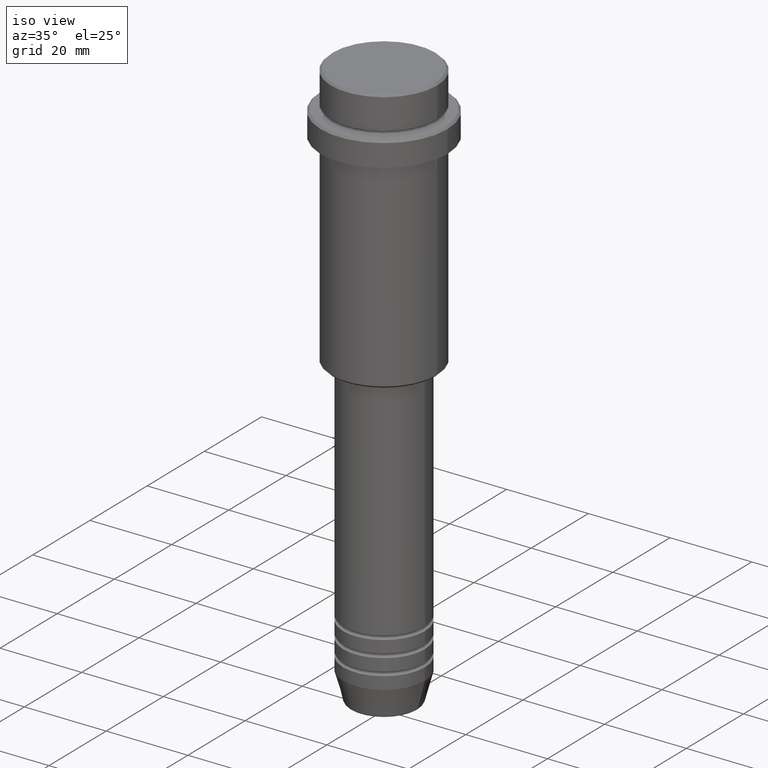
[diagram: clean part render]
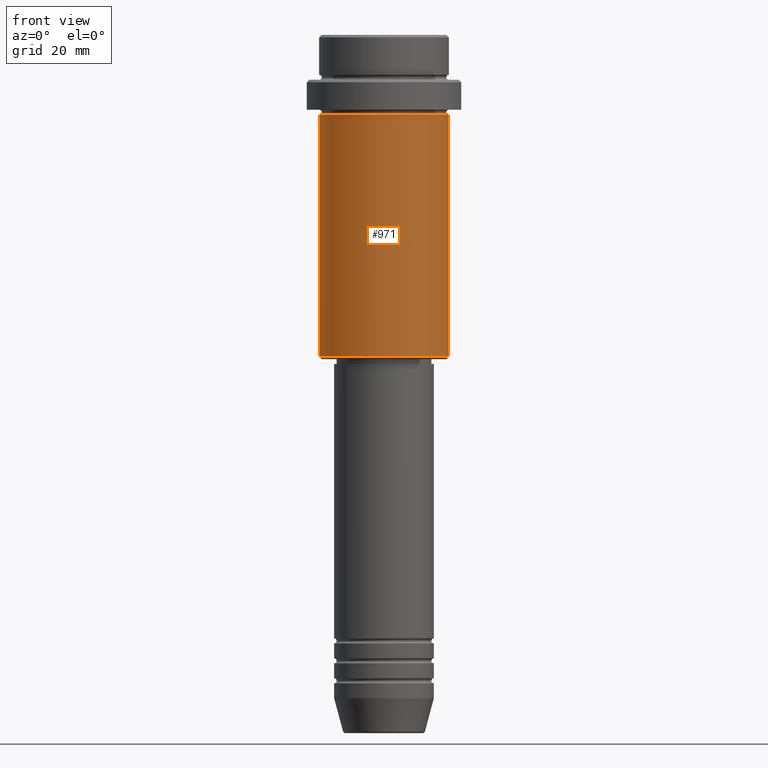
[diagram: tour spotlight — one face highlighted and labeled with its STEP entity id]
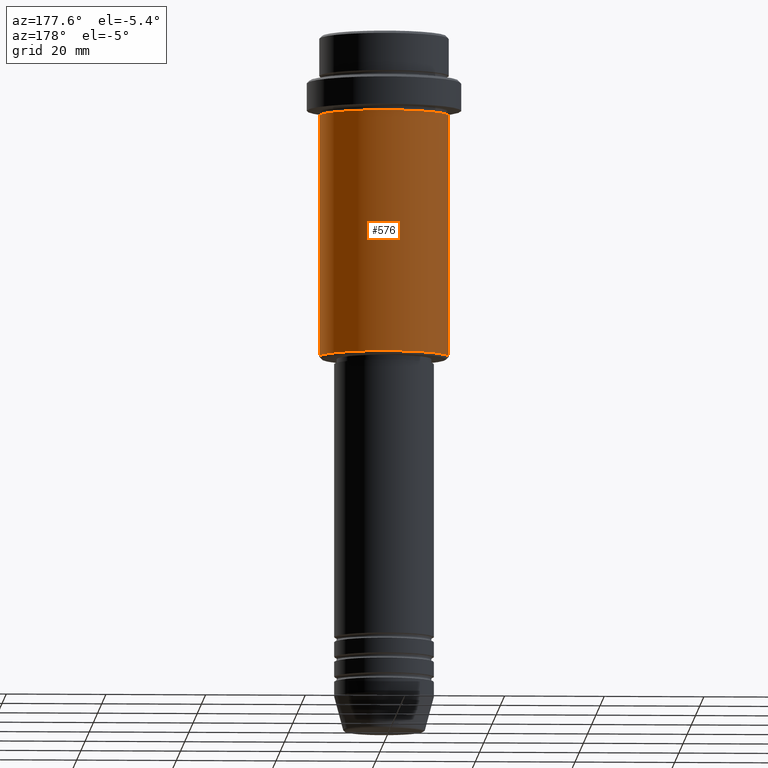
[diagram: tour spotlight — one face highlighted and labeled with its STEP entity id]
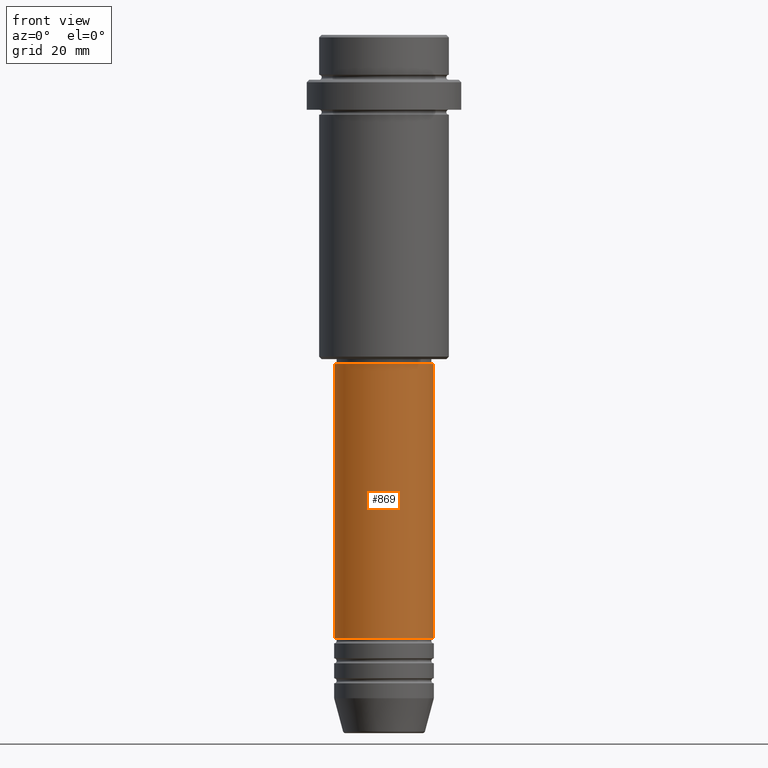
[diagram: tour spotlight — one face highlighted and labeled with its STEP entity id]
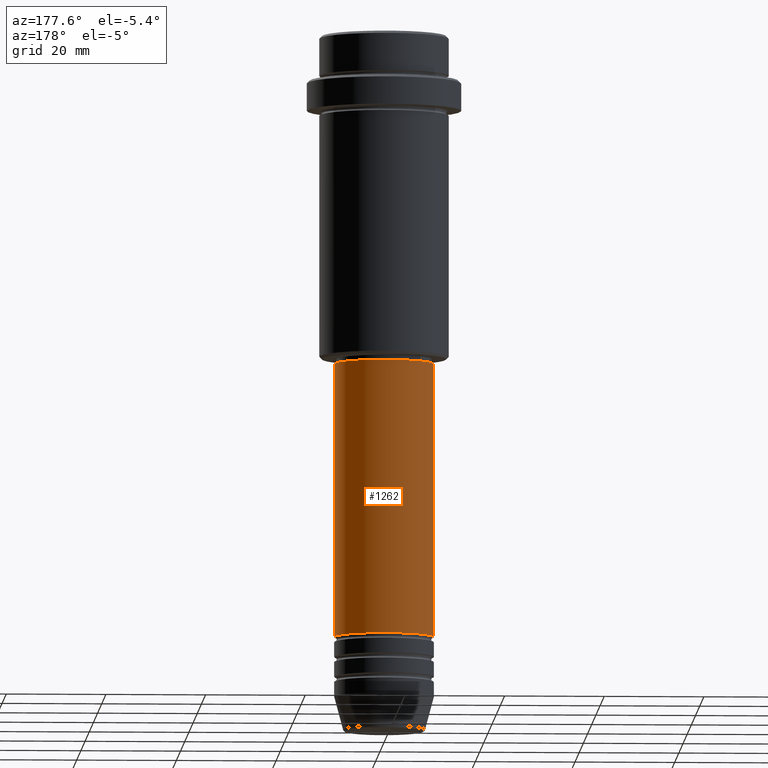
[diagram: tour spotlight — one face highlighted and labeled with its STEP entity id]
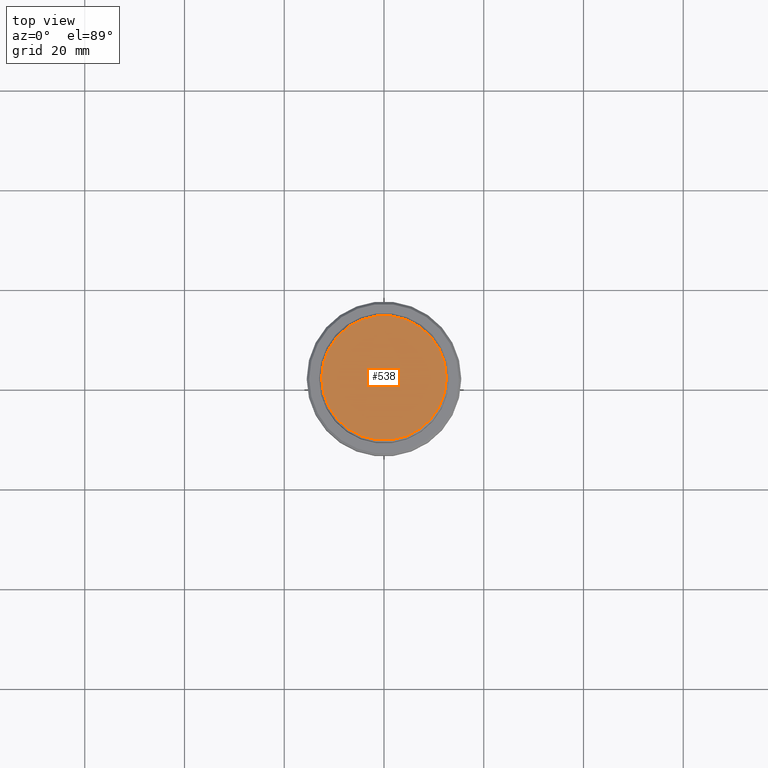
[diagram: tour spotlight — one face highlighted and labeled with its STEP entity id]
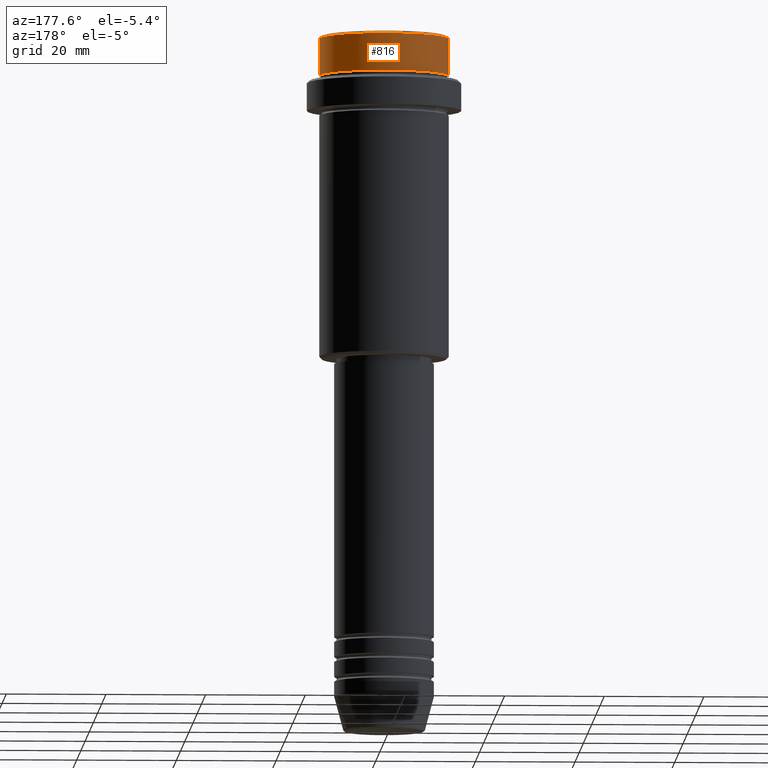
[diagram: tour spotlight — one face highlighted and labeled with its STEP entity id]
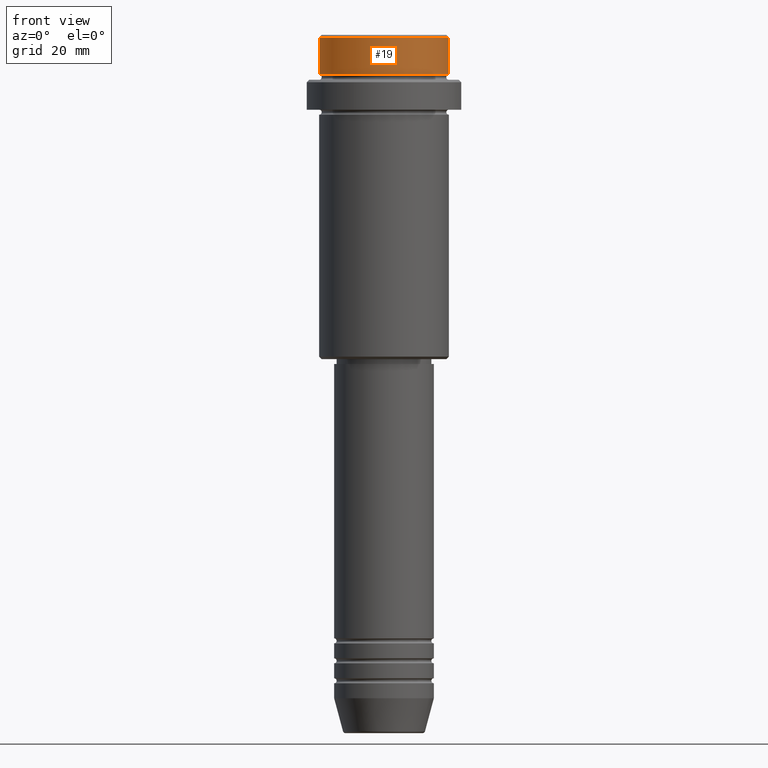
[diagram: tour spotlight — one face highlighted and labeled with its STEP entity id]
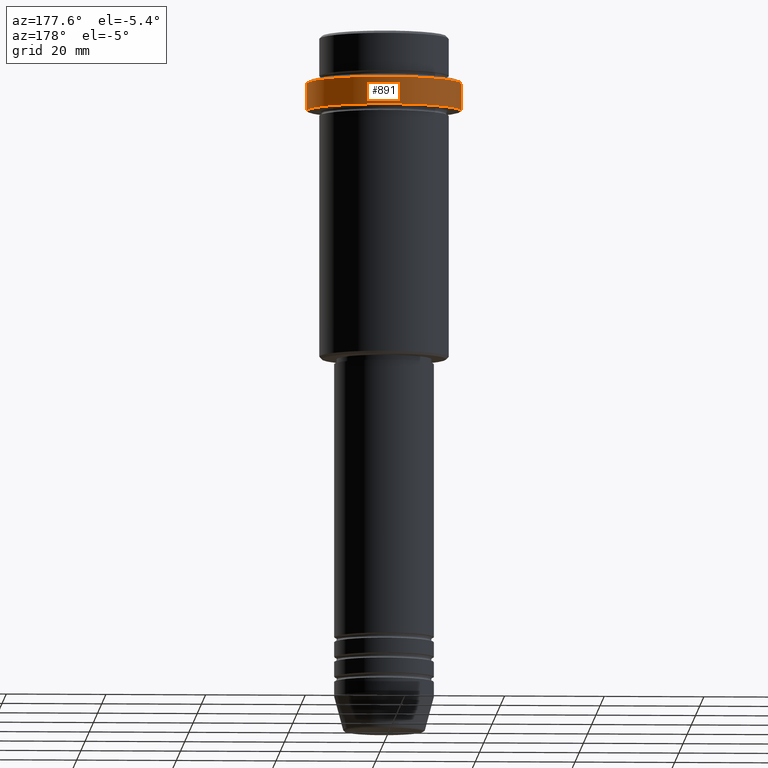
[diagram: tour spotlight — one face highlighted and labeled with its STEP entity id]
A machine part: a face-by-face anatomy tour. The part has 52 B-rep faces; the first image is the clean iso view, then the 8 largest visible faces are spotlighted one at a time (largest first), each with its STEP entity span.

Face 1 — front view, entity #971. In plain terms, the highlighted cylindrical surface (partial cylindrical patch) has radius 13 mm, axis along (-0, -0, 1).
Definition (entity closure, byte-faithful):
#33 = ORIENTED_EDGE ( 'NONE', *, *, #1378, .F. ) ;
#39 = LINE ( 'NONE', #355, #103 ) ;
#45 = CARTESIAN_POINT ( 'NONE',  ( 13.00000000000000000, 0.000000000000000000, 0.000000000000000000 ) ) ;
#58 = DIRECTION ( 'NONE',  ( 1.000000000000000000, 0.000000000000000000, 0.000000000000000000 ) ) ;
#69 = DIRECTION ( 'NONE',  ( -1.000000000000000000, 0.000000000000000000, 0.000000000000000000 ) ) ;
#103 = VECTOR ( 'NONE', #635, 1000.000000000000000 ) ;
#149 = EDGE_CURVE ( 'NONE', #823, #260, #1278, .T. ) ;
#162 = CARTESIAN_POINT ( 'NONE',  ( 0.000000000000000000, 0.000000000000000000, 0.000000000000000000 ) ) ;
#260 = VERTEX_POINT ( 'NONE', #306 ) ;
#272 = CIRCLE ( 'NONE', #314, 13.00000000000000000 ) ;
#306 = CARTESIAN_POINT ( 'NONE',  ( 13.00000000000000000, 0.000000000000000000, -16.00000000000000000 ) ) ;
#314 = AXIS2_PLACEMENT_3D ( 'NONE', #838, #708, #69 ) ;
#355 = CARTESIAN_POINT ( 'NONE',  ( -13.00000000000000000, 1.592040838891559095E-15, 0.000000000000000000 ) ) ;
#385 = ORIENTED_EDGE ( 'NONE', *, *, #934, .T. ) ;
#446 = EDGE_CURVE ( 'NONE', #453, #1354, #39, .T. ) ;
#453 = VERTEX_POINT ( 'NONE', #1266 ) ;
#610 = DIRECTION ( 'NONE',  ( 1.000000000000000000, 0.000000000000000000, 0.000000000000000000 ) ) ;
#614 = ORIENTED_EDGE ( 'NONE', *, *, #149, .T. ) ;
#635 = DIRECTION ( 'NONE',  ( -0.000000000000000000, -0.000000000000000000, 1.000000000000000000 ) ) ;
#704 = CYLINDRICAL_SURFACE ( 'NONE', #879, 13.00000000000000000 ) ;
#708 = DIRECTION ( 'NONE',  ( -0.000000000000000000, -0.000000000000000000, 1.000000000000000000 ) ) ;
#807 = DIRECTION ( 'NONE',  ( -0.000000000000000000, -0.000000000000000000, 1.000000000000000000 ) ) ;
#817 = EDGE_LOOP ( 'NONE', ( #1372, #385, #614, #33 ) ) ;
#823 = VERTEX_POINT ( 'NONE', #1106 ) ;
#825 = CARTESIAN_POINT ( 'NONE',  ( -13.00000000000000000, 1.592040838891559095E-15, -16.00000000000000000 ) ) ;
#838 = CARTESIAN_POINT ( 'NONE',  ( 0.000000000000000000, 0.000000000000000000, -64.50000000000001421 ) ) ;
#879 = AXIS2_PLACEMENT_3D ( 'NONE', #162, #807, #610 ) ;
#899 = VECTOR ( 'NONE', #1165, 1000.000000000000000 ) ;
#931 = FACE_OUTER_BOUND ( 'NONE', #817, .T. ) ;
#934 = EDGE_CURVE ( 'NONE', #453, #823, #272, .T. ) ;
#971 = ADVANCED_FACE ( 'NONE', ( #931 ), #704, .T. ) ;
#1025 = DIRECTION ( 'NONE',  ( -0.000000000000000000, -0.000000000000000000, 1.000000000000000000 ) ) ;
#1106 = CARTESIAN_POINT ( 'NONE',  ( 13.00000000000000000, 0.000000000000000000, -64.50000000000001421 ) ) ;
#1165 = DIRECTION ( 'NONE',  ( -0.000000000000000000, -0.000000000000000000, 1.000000000000000000 ) ) ;
#1263 = CARTESIAN_POINT ( 'NONE',  ( 0.000000000000000000, 0.000000000000000000, -16.00000000000000000 ) ) ;
#1266 = CARTESIAN_POINT ( 'NONE',  ( -13.00000000000000000, 1.592040838891559095E-15, -64.50000000000001421 ) ) ;
#1278 = LINE ( 'NONE', #45, #899 ) ;
#1300 = CIRCLE ( 'NONE', #1408, 13.00000000000000000 ) ;
#1354 = VERTEX_POINT ( 'NONE', #825 ) ;
#1372 = ORIENTED_EDGE ( 'NONE', *, *, #446, .F. ) ;
#1378 = EDGE_CURVE ( 'NONE', #1354, #260, #1300, .T. ) ;
#1408 = AXIS2_PLACEMENT_3D ( 'NONE', #1263, #1025, #58 ) ;

Face 2 — auxiliary view, entity #576. In plain terms, the highlighted cylindrical surface (partial cylindrical patch) has radius 13 mm, axis along (-0, -0, 1).
Definition (entity closure, byte-faithful):
#9 = ORIENTED_EDGE ( 'NONE', *, *, #149, .F. ) ;
#39 = LINE ( 'NONE', #355, #103 ) ;
#45 = CARTESIAN_POINT ( 'NONE',  ( 13.00000000000000000, 0.000000000000000000, 0.000000000000000000 ) ) ;
#103 = VECTOR ( 'NONE', #635, 1000.000000000000000 ) ;
#149 = EDGE_CURVE ( 'NONE', #823, #260, #1278, .T. ) ;
#157 = CARTESIAN_POINT ( 'NONE',  ( 0.000000000000000000, 0.000000000000000000, -64.50000000000001421 ) ) ;
#188 = ORIENTED_EDGE ( 'NONE', *, *, #446, .T. ) ;
#224 = EDGE_LOOP ( 'NONE', ( #1155, #188, #296, #9 ) ) ;
#260 = VERTEX_POINT ( 'NONE', #306 ) ;
#296 = ORIENTED_EDGE ( 'NONE', *, *, #1406, .F. ) ;
#297 = CARTESIAN_POINT ( 'NONE',  ( 0.000000000000000000, 0.000000000000000000, -16.00000000000000000 ) ) ;
#306 = CARTESIAN_POINT ( 'NONE',  ( 13.00000000000000000, 0.000000000000000000, -16.00000000000000000 ) ) ;
#355 = CARTESIAN_POINT ( 'NONE',  ( -13.00000000000000000, 1.592040838891559095E-15, 0.000000000000000000 ) ) ;
#357 = AXIS2_PLACEMENT_3D ( 'NONE', #157, #590, #1023 ) ;
#379 = DIRECTION ( 'NONE',  ( -0.000000000000000000, -0.000000000000000000, 1.000000000000000000 ) ) ;
#446 = EDGE_CURVE ( 'NONE', #453, #1354, #39, .T. ) ;
#453 = VERTEX_POINT ( 'NONE', #1266 ) ;
#487 = FACE_OUTER_BOUND ( 'NONE', #224, .T. ) ;
#576 = ADVANCED_FACE ( 'NONE', ( #487 ), #925, .T. ) ;
#590 = DIRECTION ( 'NONE',  ( -0.000000000000000000, -0.000000000000000000, 1.000000000000000000 ) ) ;
#608 = AXIS2_PLACEMENT_3D ( 'NONE', #297, #919, #819 ) ;
#628 = CIRCLE ( 'NONE', #357, 13.00000000000000000 ) ;
#635 = DIRECTION ( 'NONE',  ( -0.000000000000000000, -0.000000000000000000, 1.000000000000000000 ) ) ;
#819 = DIRECTION ( 'NONE',  ( 1.000000000000000000, 0.000000000000000000, 0.000000000000000000 ) ) ;
#823 = VERTEX_POINT ( 'NONE', #1106 ) ;
#825 = CARTESIAN_POINT ( 'NONE',  ( -13.00000000000000000, 1.592040838891559095E-15, -16.00000000000000000 ) ) ;
#829 = CARTESIAN_POINT ( 'NONE',  ( 0.000000000000000000, 0.000000000000000000, 0.000000000000000000 ) ) ;
#881 = EDGE_CURVE ( 'NONE', #823, #453, #628, .T. ) ;
#899 = VECTOR ( 'NONE', #1165, 1000.000000000000000 ) ;
#902 = AXIS2_PLACEMENT_3D ( 'NONE', #829, #379, #1393 ) ;
#919 = DIRECTION ( 'NONE',  ( -0.000000000000000000, -0.000000000000000000, 1.000000000000000000 ) ) ;
#925 = CYLINDRICAL_SURFACE ( 'NONE', #902, 13.00000000000000000 ) ;
#1023 = DIRECTION ( 'NONE',  ( -1.000000000000000000, 0.000000000000000000, 0.000000000000000000 ) ) ;
#1064 = CIRCLE ( 'NONE', #608, 13.00000000000000000 ) ;
#1106 = CARTESIAN_POINT ( 'NONE',  ( 13.00000000000000000, 0.000000000000000000, -64.50000000000001421 ) ) ;
#1155 = ORIENTED_EDGE ( 'NONE', *, *, #881, .T. ) ;
#1165 = DIRECTION ( 'NONE',  ( -0.000000000000000000, -0.000000000000000000, 1.000000000000000000 ) ) ;
#1266 = CARTESIAN_POINT ( 'NONE',  ( -13.00000000000000000, 1.592040838891559095E-15, -64.50000000000001421 ) ) ;
#1278 = LINE ( 'NONE', #45, #899 ) ;
#1354 = VERTEX_POINT ( 'NONE', #825 ) ;
#1393 = DIRECTION ( 'NONE',  ( 1.000000000000000000, 0.000000000000000000, 0.000000000000000000 ) ) ;
#1406 = EDGE_CURVE ( 'NONE', #260, #1354, #1064, .T. ) ;

Face 3 — front view, entity #869. In plain terms, the highlighted cylindrical surface (partial cylindrical patch) has radius 10 mm, axis along (-0, -0, 1).
Definition (entity closure, byte-faithful):
#2 = DIRECTION ( 'NONE',  ( -0.000000000000000000, -0.000000000000000000, 1.000000000000000000 ) ) ;
#114 = VERTEX_POINT ( 'NONE', #229 ) ;
#178 = CARTESIAN_POINT ( 'NONE',  ( -10.00000000000000178, 1.224646799147353454E-15, 0.000000000000000000 ) ) ;
#196 = AXIS2_PLACEMENT_3D ( 'NONE', #1164, #1060, #495 ) ;
#226 = LINE ( 'NONE', #883, #675 ) ;
#229 = CARTESIAN_POINT ( 'NONE',  ( 10.00000000000000178, 0.000000000000000000, -66.00000000000001421 ) ) ;
#274 = EDGE_CURVE ( 'NONE', #1321, #114, #226, .T. ) ;
#381 = ORIENTED_EDGE ( 'NONE', *, *, #796, .F. ) ;
#431 = ORIENTED_EDGE ( 'NONE', *, *, #274, .T. ) ;
#449 = DIRECTION ( 'NONE',  ( 1.000000000000000000, 0.000000000000000000, 0.000000000000000000 ) ) ;
#495 = DIRECTION ( 'NONE',  ( 1.000000000000000000, 0.000000000000000000, 0.000000000000000000 ) ) ;
#511 = EDGE_CURVE ( 'NONE', #550, #1221, #953, .T. ) ;
#550 = VERTEX_POINT ( 'NONE', #1376 ) ;
#599 = EDGE_CURVE ( 'NONE', #550, #1321, #699, .T. ) ;
#656 = CARTESIAN_POINT ( 'NONE',  ( -10.00000000000000178, 1.224646799147353454E-15, -66.00000000000001421 ) ) ;
#666 = CYLINDRICAL_SURFACE ( 'NONE', #1341, 10.00000000000000178 ) ;
#675 = VECTOR ( 'NONE', #2, 1000.000000000000000 ) ;
#678 = DIRECTION ( 'NONE',  ( -0.000000000000000000, -0.000000000000000000, 1.000000000000000000 ) ) ;
#699 = CIRCLE ( 'NONE', #196, 10.00000000000000000 ) ;
#735 = EDGE_LOOP ( 'NONE', ( #1144, #1387, #431, #381 ) ) ;
#796 = EDGE_CURVE ( 'NONE', #1221, #114, #924, .T. ) ;
#869 = ADVANCED_FACE ( 'NONE', ( #1116 ), #666, .T. ) ;
#883 = CARTESIAN_POINT ( 'NONE',  ( 10.00000000000000178, 0.000000000000000000, 0.000000000000000000 ) ) ;
#909 = CARTESIAN_POINT ( 'NONE',  ( 10.00000000000000000, 0.000000000000000000, -120.9999999999999005 ) ) ;
#924 = CIRCLE ( 'NONE', #1276, 10.00000000000000178 ) ;
#953 = LINE ( 'NONE', #178, #1338 ) ;
#1002 = DIRECTION ( 'NONE',  ( 1.000000000000000000, 0.000000000000000000, 0.000000000000000000 ) ) ;
#1060 = DIRECTION ( 'NONE',  ( -0.000000000000000000, -0.000000000000000000, 1.000000000000000000 ) ) ;
#1111 = CARTESIAN_POINT ( 'NONE',  ( 0.000000000000000000, 0.000000000000000000, 0.000000000000000000 ) ) ;
#1116 = FACE_OUTER_BOUND ( 'NONE', #735, .T. ) ;
#1144 = ORIENTED_EDGE ( 'NONE', *, *, #511, .F. ) ;
#1157 = DIRECTION ( 'NONE',  ( -0.000000000000000000, -0.000000000000000000, 1.000000000000000000 ) ) ;
#1164 = CARTESIAN_POINT ( 'NONE',  ( 0.000000000000000000, 0.000000000000000000, -120.9999999999999005 ) ) ;
#1221 = VERTEX_POINT ( 'NONE', #656 ) ;
#1234 = DIRECTION ( 'NONE',  ( -0.000000000000000000, -0.000000000000000000, 1.000000000000000000 ) ) ;
#1276 = AXIS2_PLACEMENT_3D ( 'NONE', #1315, #1234, #449 ) ;
#1315 = CARTESIAN_POINT ( 'NONE',  ( 0.000000000000000000, 0.000000000000000000, -66.00000000000001421 ) ) ;
#1321 = VERTEX_POINT ( 'NONE', #909 ) ;
#1338 = VECTOR ( 'NONE', #1157, 1000.000000000000000 ) ;
#1341 = AXIS2_PLACEMENT_3D ( 'NONE', #1111, #678, #1002 ) ;
#1376 = CARTESIAN_POINT ( 'NONE',  ( -10.00000000000000000, 1.224646799147353256E-15, -120.9999999999999005 ) ) ;
#1387 = ORIENTED_EDGE ( 'NONE', *, *, #599, .T. ) ;

Face 4 — auxiliary view, entity #1262. In plain terms, the highlighted cylindrical surface (partial cylindrical patch) has radius 10 mm, axis along (-0, -0, 1).
Definition (entity closure, byte-faithful):
#2 = DIRECTION ( 'NONE',  ( -0.000000000000000000, -0.000000000000000000, 1.000000000000000000 ) ) ;
#35 = EDGE_CURVE ( 'NONE', #1321, #550, #192, .T. ) ;
#59 = AXIS2_PLACEMENT_3D ( 'NONE', #624, #404, #169 ) ;
#114 = VERTEX_POINT ( 'NONE', #229 ) ;
#136 = CARTESIAN_POINT ( 'NONE',  ( 0.000000000000000000, 0.000000000000000000, 0.000000000000000000 ) ) ;
#169 = DIRECTION ( 'NONE',  ( 1.000000000000000000, 0.000000000000000000, 0.000000000000000000 ) ) ;
#178 = CARTESIAN_POINT ( 'NONE',  ( -10.00000000000000178, 1.224646799147353454E-15, 0.000000000000000000 ) ) ;
#192 = CIRCLE ( 'NONE', #1316, 10.00000000000000000 ) ;
#226 = LINE ( 'NONE', #883, #675 ) ;
#229 = CARTESIAN_POINT ( 'NONE',  ( 10.00000000000000178, 0.000000000000000000, -66.00000000000001421 ) ) ;
#274 = EDGE_CURVE ( 'NONE', #1321, #114, #226, .T. ) ;
#302 = ORIENTED_EDGE ( 'NONE', *, *, #35, .T. ) ;
#329 = ORIENTED_EDGE ( 'NONE', *, *, #511, .T. ) ;
#366 = CYLINDRICAL_SURFACE ( 'NONE', #681, 10.00000000000000178 ) ;
#404 = DIRECTION ( 'NONE',  ( -0.000000000000000000, -0.000000000000000000, 1.000000000000000000 ) ) ;
#405 = DIRECTION ( 'NONE',  ( -0.000000000000000000, -0.000000000000000000, 1.000000000000000000 ) ) ;
#511 = EDGE_CURVE ( 'NONE', #550, #1221, #953, .T. ) ;
#550 = VERTEX_POINT ( 'NONE', #1376 ) ;
#585 = EDGE_CURVE ( 'NONE', #114, #1221, #808, .T. ) ;
#624 = CARTESIAN_POINT ( 'NONE',  ( 0.000000000000000000, 0.000000000000000000, -66.00000000000001421 ) ) ;
#656 = CARTESIAN_POINT ( 'NONE',  ( -10.00000000000000178, 1.224646799147353454E-15, -66.00000000000001421 ) ) ;
#675 = VECTOR ( 'NONE', #2, 1000.000000000000000 ) ;
#681 = AXIS2_PLACEMENT_3D ( 'NONE', #136, #684, #887 ) ;
#684 = DIRECTION ( 'NONE',  ( -0.000000000000000000, -0.000000000000000000, 1.000000000000000000 ) ) ;
#784 = ORIENTED_EDGE ( 'NONE', *, *, #274, .F. ) ;
#808 = CIRCLE ( 'NONE', #59, 10.00000000000000178 ) ;
#836 = EDGE_LOOP ( 'NONE', ( #302, #329, #1327, #784 ) ) ;
#843 = DIRECTION ( 'NONE',  ( 1.000000000000000000, 0.000000000000000000, 0.000000000000000000 ) ) ;
#883 = CARTESIAN_POINT ( 'NONE',  ( 10.00000000000000178, 0.000000000000000000, 0.000000000000000000 ) ) ;
#887 = DIRECTION ( 'NONE',  ( 1.000000000000000000, 0.000000000000000000, 0.000000000000000000 ) ) ;
#909 = CARTESIAN_POINT ( 'NONE',  ( 10.00000000000000000, 0.000000000000000000, -120.9999999999999005 ) ) ;
#953 = LINE ( 'NONE', #178, #1338 ) ;
#1102 = FACE_OUTER_BOUND ( 'NONE', #836, .T. ) ;
#1157 = DIRECTION ( 'NONE',  ( -0.000000000000000000, -0.000000000000000000, 1.000000000000000000 ) ) ;
#1221 = VERTEX_POINT ( 'NONE', #656 ) ;
#1262 = ADVANCED_FACE ( 'NONE', ( #1102 ), #366, .T. ) ;
#1316 = AXIS2_PLACEMENT_3D ( 'NONE', #1389, #405, #843 ) ;
#1321 = VERTEX_POINT ( 'NONE', #909 ) ;
#1327 = ORIENTED_EDGE ( 'NONE', *, *, #585, .F. ) ;
#1338 = VECTOR ( 'NONE', #1157, 1000.000000000000000 ) ;
#1376 = CARTESIAN_POINT ( 'NONE',  ( -10.00000000000000000, 1.224646799147353256E-15, -120.9999999999999005 ) ) ;
#1389 = CARTESIAN_POINT ( 'NONE',  ( 0.000000000000000000, 0.000000000000000000, -120.9999999999999005 ) ) ;

Face 5 — top view, entity #538. In plain terms, the highlighted planar face has unit normal (0, -0, 1).
Definition (entity closure, byte-faithful):
#159 = EDGE_LOOP ( 'NONE', ( #1101, #239 ) ) ;
#186 = DIRECTION ( 'NONE',  ( 1.000000000000000000, 0.000000000000000000, 0.000000000000000000 ) ) ;
#194 = AXIS2_PLACEMENT_3D ( 'NONE', #749, #1353, #1366 ) ;
#239 = ORIENTED_EDGE ( 'NONE', *, *, #374, .T. ) ;
#246 = CIRCLE ( 'NONE', #194, 12.50000000000001243 ) ;
#290 = CARTESIAN_POINT ( 'NONE',  ( -12.50000000000001243, 0.000000000000000000, 0.000000000000000000 ) ) ;
#374 = EDGE_CURVE ( 'NONE', #482, #1380, #246, .T. ) ;
#387 = PLANE ( 'NONE',  #901 ) ;
#447 = DIRECTION ( 'NONE',  ( 1.000000000000000000, 0.000000000000000000, 0.000000000000000000 ) ) ;
#482 = VERTEX_POINT ( 'NONE', #516 ) ;
#516 = CARTESIAN_POINT ( 'NONE',  ( 12.50000000000001243, 1.561424668912876097E-15, 0.000000000000000000 ) ) ;
#538 = ADVANCED_FACE ( 'NONE', ( #611 ), #387, .T. ) ;
#611 = FACE_OUTER_BOUND ( 'NONE', #159, .T. ) ;
#749 = CARTESIAN_POINT ( 'NONE',  ( 0.000000000000000000, 0.000000000000000000, 0.000000000000000000 ) ) ;
#778 = CARTESIAN_POINT ( 'NONE',  ( 0.000000000000000000, 0.000000000000000000, 0.000000000000000000 ) ) ;
#901 = AXIS2_PLACEMENT_3D ( 'NONE', #1291, #1045, #186 ) ;
#928 = AXIS2_PLACEMENT_3D ( 'NONE', #778, #1208, #447 ) ;
#1016 = CIRCLE ( 'NONE', #928, 12.50000000000001243 ) ;
#1045 = DIRECTION ( 'NONE',  ( 0.000000000000000000, -0.000000000000000000, 1.000000000000000000 ) ) ;
#1101 = ORIENTED_EDGE ( 'NONE', *, *, #1340, .T. ) ;
#1208 = DIRECTION ( 'NONE',  ( -0.000000000000000000, -0.000000000000000000, 1.000000000000000000 ) ) ;
#1291 = CARTESIAN_POINT ( 'NONE',  ( 0.000000000000000000, 0.000000000000000000, 0.000000000000000000 ) ) ;
#1340 = EDGE_CURVE ( 'NONE', #1380, #482, #1016, .T. ) ;
#1353 = DIRECTION ( 'NONE',  ( -0.000000000000000000, -0.000000000000000000, 1.000000000000000000 ) ) ;
#1366 = DIRECTION ( 'NONE',  ( 1.000000000000000000, 0.000000000000000000, 0.000000000000000000 ) ) ;
#1380 = VERTEX_POINT ( 'NONE', #290 ) ;

Face 6 — auxiliary view, entity #816. In plain terms, the highlighted cylindrical surface (partial cylindrical patch) has radius 13 mm, axis along (-0, -0, 1).
Definition (entity closure, byte-faithful):
#27 = DIRECTION ( 'NONE',  ( 1.000000000000000000, 0.000000000000000000, 0.000000000000000000 ) ) ;
#57 = VECTOR ( 'NONE', #187, 1000.000000000000000 ) ;
#86 = CARTESIAN_POINT ( 'NONE',  ( 12.99999999999999822, 0.000000000000000000, 0.000000000000000000 ) ) ;
#112 = DIRECTION ( 'NONE',  ( 0.000000000000000000, 0.000000000000000000, -1.000000000000000000 ) ) ;
#139 = DIRECTION ( 'NONE',  ( -0.000000000000000000, -0.000000000000000000, 1.000000000000000000 ) ) ;
#155 = CARTESIAN_POINT ( 'NONE',  ( 12.99999999999999822, 0.000000000000000000, -0.4999999999999900080 ) ) ;
#187 = DIRECTION ( 'NONE',  ( -0.000000000000000000, -0.000000000000000000, 1.000000000000000000 ) ) ;
#213 = LINE ( 'NONE', #1290, #1281 ) ;
#247 = AXIS2_PLACEMENT_3D ( 'NONE', #478, #139, #27 ) ;
#255 = FACE_OUTER_BOUND ( 'NONE', #798, .T. ) ;
#261 = EDGE_CURVE ( 'NONE', #692, #1284, #1280, .T. ) ;
#335 = AXIS2_PLACEMENT_3D ( 'NONE', #957, #112, #866 ) ;
#336 = AXIS2_PLACEMENT_3D ( 'NONE', #409, #426, #1089 ) ;
#409 = CARTESIAN_POINT ( 'NONE',  ( 0.000000000000000000, 0.000000000000000000, -7.999999999999998224 ) ) ;
#426 = DIRECTION ( 'NONE',  ( -0.000000000000000000, -0.000000000000000000, 1.000000000000000000 ) ) ;
#478 = CARTESIAN_POINT ( 'NONE',  ( 0.000000000000000000, 0.000000000000000000, 0.000000000000000000 ) ) ;
#604 = CIRCLE ( 'NONE', #335, 12.99999999999999822 ) ;
#626 = ORIENTED_EDGE ( 'NONE', *, *, #1174, .T. ) ;
#639 = EDGE_CURVE ( 'NONE', #1235, #1284, #604, .T. ) ;
#692 = VERTEX_POINT ( 'NONE', #970 ) ;
#701 = CIRCLE ( 'NONE', #336, 12.99999999999999822 ) ;
#756 = VERTEX_POINT ( 'NONE', #761 ) ;
#761 = CARTESIAN_POINT ( 'NONE',  ( -12.99999999999999822, 1.592040838891558898E-15, -7.999999999999998224 ) ) ;
#798 = EDGE_LOOP ( 'NONE', ( #626, #1114, #1120, #1054 ) ) ;
#816 = ADVANCED_FACE ( 'NONE', ( #255 ), #1352, .T. ) ;
#866 = DIRECTION ( 'NONE',  ( 1.000000000000000000, 0.000000000000000000, 0.000000000000000000 ) ) ;
#957 = CARTESIAN_POINT ( 'NONE',  ( 0.000000000000000000, 0.000000000000000000, -0.4999999999999900080 ) ) ;
#970 = CARTESIAN_POINT ( 'NONE',  ( 12.99999999999999822, 0.000000000000000000, -7.999999999999998224 ) ) ;
#1054 = ORIENTED_EDGE ( 'NONE', *, *, #261, .F. ) ;
#1089 = DIRECTION ( 'NONE',  ( 1.000000000000000000, 0.000000000000000000, 0.000000000000000000 ) ) ;
#1114 = ORIENTED_EDGE ( 'NONE', *, *, #1188, .T. ) ;
#1120 = ORIENTED_EDGE ( 'NONE', *, *, #639, .T. ) ;
#1174 = EDGE_CURVE ( 'NONE', #692, #756, #701, .T. ) ;
#1188 = EDGE_CURVE ( 'NONE', #756, #1235, #213, .T. ) ;
#1235 = VERTEX_POINT ( 'NONE', #1329 ) ;
#1280 = LINE ( 'NONE', #86, #57 ) ;
#1281 = VECTOR ( 'NONE', #1391, 1000.000000000000000 ) ;
#1284 = VERTEX_POINT ( 'NONE', #155 ) ;
#1290 = CARTESIAN_POINT ( 'NONE',  ( -12.99999999999999822, 1.592040838891558898E-15, 0.000000000000000000 ) ) ;
#1329 = CARTESIAN_POINT ( 'NONE',  ( -12.99999999999999822, 1.592040838891558898E-15, -0.4999999999999900080 ) ) ;
#1352 = CYLINDRICAL_SURFACE ( 'NONE', #247, 12.99999999999999822 ) ;
#1391 = DIRECTION ( 'NONE',  ( -0.000000000000000000, -0.000000000000000000, 1.000000000000000000 ) ) ;

Face 7 — front view, entity #19. In plain terms, the highlighted cylindrical surface (partial cylindrical patch) has radius 13 mm, axis along (-0, -0, 1).
Definition (entity closure, byte-faithful):
#16 = DIRECTION ( 'NONE',  ( 1.000000000000000000, 0.000000000000000000, 0.000000000000000000 ) ) ;
#19 = ADVANCED_FACE ( 'NONE', ( #1109 ), #1123, .T. ) ;
#57 = VECTOR ( 'NONE', #187, 1000.000000000000000 ) ;
#86 = CARTESIAN_POINT ( 'NONE',  ( 12.99999999999999822, 0.000000000000000000, 0.000000000000000000 ) ) ;
#155 = CARTESIAN_POINT ( 'NONE',  ( 12.99999999999999822, 0.000000000000000000, -0.4999999999999900080 ) ) ;
#187 = DIRECTION ( 'NONE',  ( -0.000000000000000000, -0.000000000000000000, 1.000000000000000000 ) ) ;
#210 = CARTESIAN_POINT ( 'NONE',  ( 0.000000000000000000, 0.000000000000000000, -7.999999999999998224 ) ) ;
#213 = LINE ( 'NONE', #1290, #1281 ) ;
#232 = EDGE_LOOP ( 'NONE', ( #1205, #1135, #1117, #662 ) ) ;
#261 = EDGE_CURVE ( 'NONE', #692, #1284, #1280, .T. ) ;
#340 = EDGE_CURVE ( 'NONE', #756, #692, #416, .T. ) ;
#350 = DIRECTION ( 'NONE',  ( -0.000000000000000000, -0.000000000000000000, 1.000000000000000000 ) ) ;
#416 = CIRCLE ( 'NONE', #435, 12.99999999999999822 ) ;
#435 = AXIS2_PLACEMENT_3D ( 'NONE', #210, #738, #942 ) ;
#468 = CARTESIAN_POINT ( 'NONE',  ( 0.000000000000000000, 0.000000000000000000, 0.000000000000000000 ) ) ;
#560 = CIRCLE ( 'NONE', #905, 12.99999999999999822 ) ;
#638 = CARTESIAN_POINT ( 'NONE',  ( 0.000000000000000000, 0.000000000000000000, -0.4999999999999900080 ) ) ;
#662 = ORIENTED_EDGE ( 'NONE', *, *, #1087, .T. ) ;
#692 = VERTEX_POINT ( 'NONE', #970 ) ;
#738 = DIRECTION ( 'NONE',  ( -0.000000000000000000, -0.000000000000000000, 1.000000000000000000 ) ) ;
#756 = VERTEX_POINT ( 'NONE', #761 ) ;
#757 = DIRECTION ( 'NONE',  ( 1.000000000000000000, 0.000000000000000000, 0.000000000000000000 ) ) ;
#761 = CARTESIAN_POINT ( 'NONE',  ( -12.99999999999999822, 1.592040838891558898E-15, -7.999999999999998224 ) ) ;
#905 = AXIS2_PLACEMENT_3D ( 'NONE', #638, #973, #757 ) ;
#942 = DIRECTION ( 'NONE',  ( 1.000000000000000000, 0.000000000000000000, 0.000000000000000000 ) ) ;
#970 = CARTESIAN_POINT ( 'NONE',  ( 12.99999999999999822, 0.000000000000000000, -7.999999999999998224 ) ) ;
#973 = DIRECTION ( 'NONE',  ( 0.000000000000000000, 0.000000000000000000, -1.000000000000000000 ) ) ;
#1087 = EDGE_CURVE ( 'NONE', #1284, #1235, #560, .T. ) ;
#1109 = FACE_OUTER_BOUND ( 'NONE', #232, .T. ) ;
#1117 = ORIENTED_EDGE ( 'NONE', *, *, #261, .T. ) ;
#1123 = CYLINDRICAL_SURFACE ( 'NONE', #1241, 12.99999999999999822 ) ;
#1135 = ORIENTED_EDGE ( 'NONE', *, *, #340, .T. ) ;
#1188 = EDGE_CURVE ( 'NONE', #756, #1235, #213, .T. ) ;
#1205 = ORIENTED_EDGE ( 'NONE', *, *, #1188, .F. ) ;
#1235 = VERTEX_POINT ( 'NONE', #1329 ) ;
#1241 = AXIS2_PLACEMENT_3D ( 'NONE', #468, #350, #16 ) ;
#1280 = LINE ( 'NONE', #86, #57 ) ;
#1281 = VECTOR ( 'NONE', #1391, 1000.000000000000000 ) ;
#1284 = VERTEX_POINT ( 'NONE', #155 ) ;
#1290 = CARTESIAN_POINT ( 'NONE',  ( -12.99999999999999822, 1.592040838891558898E-15, 0.000000000000000000 ) ) ;
#1329 = CARTESIAN_POINT ( 'NONE',  ( -12.99999999999999822, 1.592040838891558898E-15, -0.4999999999999900080 ) ) ;
#1391 = DIRECTION ( 'NONE',  ( -0.000000000000000000, -0.000000000000000000, 1.000000000000000000 ) ) ;

Face 8 — auxiliary view, entity #891. In plain terms, the highlighted cylindrical surface (partial cylindrical patch) has radius 15.5 mm, axis along (-0, -0, 1).
Definition (entity closure, byte-faithful):
#17 = CARTESIAN_POINT ( 'NONE',  ( 15.50000000000000000, 0.000000000000000000, -9.499999999999984013 ) ) ;
#62 = EDGE_CURVE ( 'NONE', #1119, #563, #1032, .T. ) ;
#82 = CIRCLE ( 'NONE', #680, 15.50000000000000000 ) ;
#113 = EDGE_CURVE ( 'NONE', #1119, #1287, #907, .T. ) ;
#117 = ORIENTED_EDGE ( 'NONE', *, *, #897, .T. ) ;
#165 = DIRECTION ( 'NONE',  ( 1.000000000000000000, 0.000000000000000000, 0.000000000000000000 ) ) ;
#177 = EDGE_CURVE ( 'NONE', #563, #935, #980, .T. ) ;
#212 = ORIENTED_EDGE ( 'NONE', *, *, #62, .T. ) ;
#220 = DIRECTION ( 'NONE',  ( -0.000000000000000000, -0.000000000000000000, 1.000000000000000000 ) ) ;
#259 = DIRECTION ( 'NONE',  ( 1.000000000000000000, 0.000000000000000000, 0.000000000000000000 ) ) ;
#377 = CARTESIAN_POINT ( 'NONE',  ( 0.000000000000000000, 0.000000000000000000, -15.00000000000000000 ) ) ;
#458 = FACE_OUTER_BOUND ( 'NONE', #1200, .T. ) ;
#491 = AXIS2_PLACEMENT_3D ( 'NONE', #1220, #1098, #259 ) ;
#504 = CARTESIAN_POINT ( 'NONE',  ( -15.50000000000000000, 1.898202538678397557E-15, -9.499999999999984013 ) ) ;
#519 = CARTESIAN_POINT ( 'NONE',  ( 15.50000000000000000, 0.000000000000000000, -15.00000000000000000 ) ) ;
#525 = VECTOR ( 'NONE', #220, 1000.000000000000000 ) ;
#558 = DIRECTION ( 'NONE',  ( 0.000000000000000000, 0.000000000000000000, -1.000000000000000000 ) ) ;
#563 = VERTEX_POINT ( 'NONE', #618 ) ;
#618 = CARTESIAN_POINT ( 'NONE',  ( -15.50000000000000000, 1.898202538678397557E-15, -15.00000000000000000 ) ) ;
#680 = AXIS2_PLACEMENT_3D ( 'NONE', #1336, #558, #992 ) ;
#783 = VECTOR ( 'NONE', #1348, 1000.000000000000000 ) ;
#852 = AXIS2_PLACEMENT_3D ( 'NONE', #377, #1137, #165 ) ;
#891 = ADVANCED_FACE ( 'NONE', ( #458 ), #903, .T. ) ;
#897 = EDGE_CURVE ( 'NONE', #935, #1287, #82, .T. ) ;
#898 = CARTESIAN_POINT ( 'NONE',  ( 15.50000000000000000, 0.000000000000000000, 0.000000000000000000 ) ) ;
#903 = CYLINDRICAL_SURFACE ( 'NONE', #491, 15.50000000000000000 ) ;
#907 = LINE ( 'NONE', #898, #783 ) ;
#935 = VERTEX_POINT ( 'NONE', #504 ) ;
#947 = ORIENTED_EDGE ( 'NONE', *, *, #113, .F. ) ;
#980 = LINE ( 'NONE', #1191, #525 ) ;
#992 = DIRECTION ( 'NONE',  ( 1.000000000000000000, 0.000000000000000000, 0.000000000000000000 ) ) ;
#1000 = ORIENTED_EDGE ( 'NONE', *, *, #177, .T. ) ;
#1032 = CIRCLE ( 'NONE', #852, 15.50000000000000000 ) ;
#1098 = DIRECTION ( 'NONE',  ( -0.000000000000000000, -0.000000000000000000, 1.000000000000000000 ) ) ;
#1119 = VERTEX_POINT ( 'NONE', #519 ) ;
#1137 = DIRECTION ( 'NONE',  ( -0.000000000000000000, -0.000000000000000000, 1.000000000000000000 ) ) ;
#1191 = CARTESIAN_POINT ( 'NONE',  ( -15.50000000000000000, 1.898202538678397557E-15, 0.000000000000000000 ) ) ;
#1200 = EDGE_LOOP ( 'NONE', ( #212, #1000, #117, #947 ) ) ;
#1220 = CARTESIAN_POINT ( 'NONE',  ( 0.000000000000000000, 0.000000000000000000, 0.000000000000000000 ) ) ;
#1287 = VERTEX_POINT ( 'NONE', #17 ) ;
#1336 = CARTESIAN_POINT ( 'NONE',  ( 0.000000000000000000, 0.000000000000000000, -9.499999999999984013 ) ) ;
#1348 = DIRECTION ( 'NONE',  ( -0.000000000000000000, -0.000000000000000000, 1.000000000000000000 ) ) ;